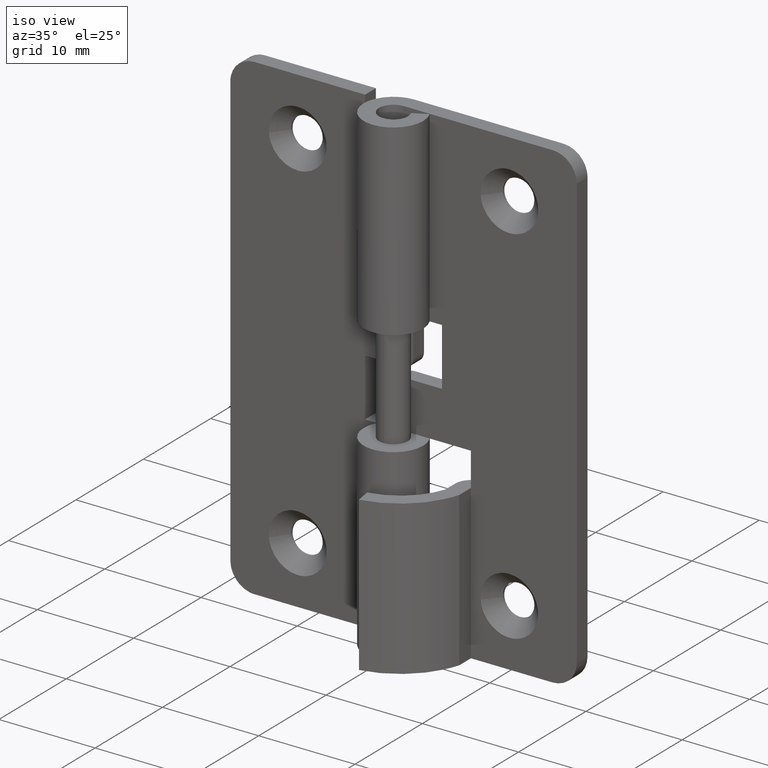
[diagram: clean part render]
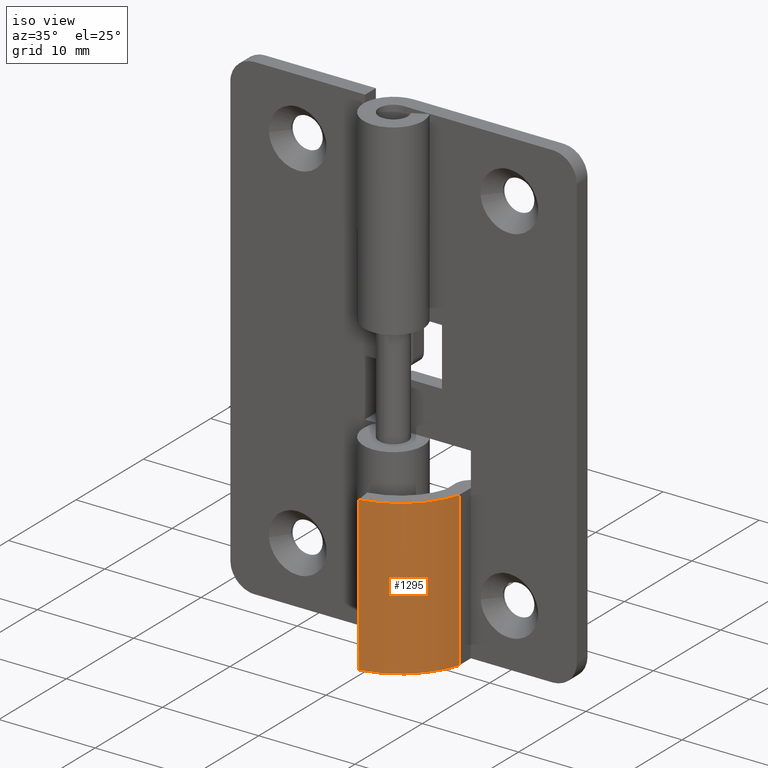
[diagram: same view with one face highlighted and labeled with its STEP entity id]
A machine part, iso view. The second image highlights one B-rep face of the part: STEP entity #1295.
In plain terms, the highlighted face is a freeform B-spline surface patch.
Its self-contained STEP definition (entity closure, byte-faithful):
#1221=CARTESIAN_POINT('',(0.549644998060245,-5.902137139268600,16.0));
#1222=VERTEX_POINT('',#1221);
#1228=CARTESIAN_POINT('',(7.000000999999840,-0.225592976466064,16.0));
#1229=VERTEX_POINT('',#1228);
#1230=CARTESIAN_POINT('',(0.549644998060242,-5.902137139268579,16.0));
#1231=CARTESIAN_POINT('',(5.550602790924178,-5.081714564584165,16.000000000000007));
#1232=CARTESIAN_POINT('',(7.000000999999843,-0.225592976466070,16.0));
#1240=(BOUNDED_CURVE()B_SPLINE_CURVE(2,(#1230,#1231,#1232),.UNSPECIFIED.,.F.,.U.)CURVE()GEOMETRIC_REPRESENTATION_ITEM()QUASI_UNIFORM_CURVE()RATIONAL_B_SPLINE_CURVE((1.0,0.847748557675013,1.0))REPRESENTATION_ITEM(''));
#1241=EDGE_CURVE('',#1222,#1229,#1240,.T.);
#1251=CARTESIAN_POINT('',(0.479842537700251,-5.913275902536310,16.399999999999999));
#1252=CARTESIAN_POINT('',(0.479842537700251,-5.913275902536310,-0.410000000000000));
#1253=CARTESIAN_POINT('',(5.838270486478630,-5.082161418124354,16.400000000000009));
#1254=CARTESIAN_POINT('',(5.838270486478630,-5.082161418124354,-0.410000000000000));
#1255=CARTESIAN_POINT('',(7.111785115310175,0.188669812203618,16.400000000000006));
#1256=CARTESIAN_POINT('',(7.111785115310175,0.188669812203618,-0.410000000000000));
#1264=(BOUNDED_SURFACE()B_SPLINE_SURFACE(1,2,((#1251,#1253,#1255),(#1252,#1254,#1256)),.UNSPECIFIED.,.F.,.F.,.U.)B_SPLINE_SURFACE_WITH_KNOTS((2,2),(3,3),(0.0,16.809999999999999),(0.0,9.843903079617398),.UNSPECIFIED.)GEOMETRIC_REPRESENTATION_ITEM()RATIONAL_B_SPLINE_SURFACE(((1.0,0.830103063900022,0.997882298260985),(1.0,0.830103063900022,0.997882298260985)))REPRESENTATION_ITEM('')SURFACE());
#1265=CARTESIAN_POINT('',(0.549644998060245,-5.902137139268600,0.0));
#1266=VERTEX_POINT('',#1265);
#1267=CARTESIAN_POINT('',(7.000000999999840,-0.225592976466064,0.0));
#1268=VERTEX_POINT('',#1267);
#1269=CARTESIAN_POINT('',(0.549644998060242,-5.902137139268579,0.0));
#1270=CARTESIAN_POINT('',(5.550602790924178,-5.081714564584165,0.0));
#1271=CARTESIAN_POINT('',(7.000000999999843,-0.225592976466070,0.0));
#1279=(BOUNDED_CURVE()B_SPLINE_CURVE(2,(#1269,#1270,#1271),.UNSPECIFIED.,.F.,.U.)CURVE()GEOMETRIC_REPRESENTATION_ITEM()QUASI_UNIFORM_CURVE()RATIONAL_B_SPLINE_CURVE((1.0,0.847748557675013,1.0))REPRESENTATION_ITEM(''));
#1280=EDGE_CURVE('',#1266,#1268,#1279,.T.);
#1281=ORIENTED_EDGE('',*,*,#1280,.T.);
#1282=CARTESIAN_POINT('',(7.000000999999840,-0.225592976466064,16.0));
#1283=CARTESIAN_POINT('',(7.000000999999840,-0.225592976466064,0.0));
#1284=QUASI_UNIFORM_CURVE('',1,(#1282,#1283),.UNSPECIFIED.,.F.,.U.);
#1285=EDGE_CURVE('',#1229,#1268,#1284,.T.);
#1286=ORIENTED_EDGE('',*,*,#1285,.F.);
#1287=ORIENTED_EDGE('',*,*,#1241,.F.);
#1288=CARTESIAN_POINT('',(0.549644998060245,-5.902137139268600,16.0));
#1289=CARTESIAN_POINT('',(0.549644998060245,-5.902137139268600,0.0));
#1290=QUASI_UNIFORM_CURVE('',1,(#1288,#1289),.UNSPECIFIED.,.F.,.U.);
#1291=EDGE_CURVE('',#1222,#1266,#1290,.T.);
#1292=ORIENTED_EDGE('',*,*,#1291,.T.);
#1293=EDGE_LOOP('',(#1281,#1286,#1287,#1292));
#1294=FACE_OUTER_BOUND('',#1293,.T.);
#1295=ADVANCED_FACE('',(#1294),#1264,.T.);